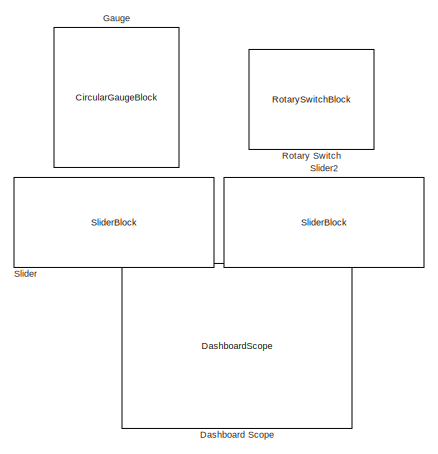
[diagram: root canvas - part 1/2, top center region]
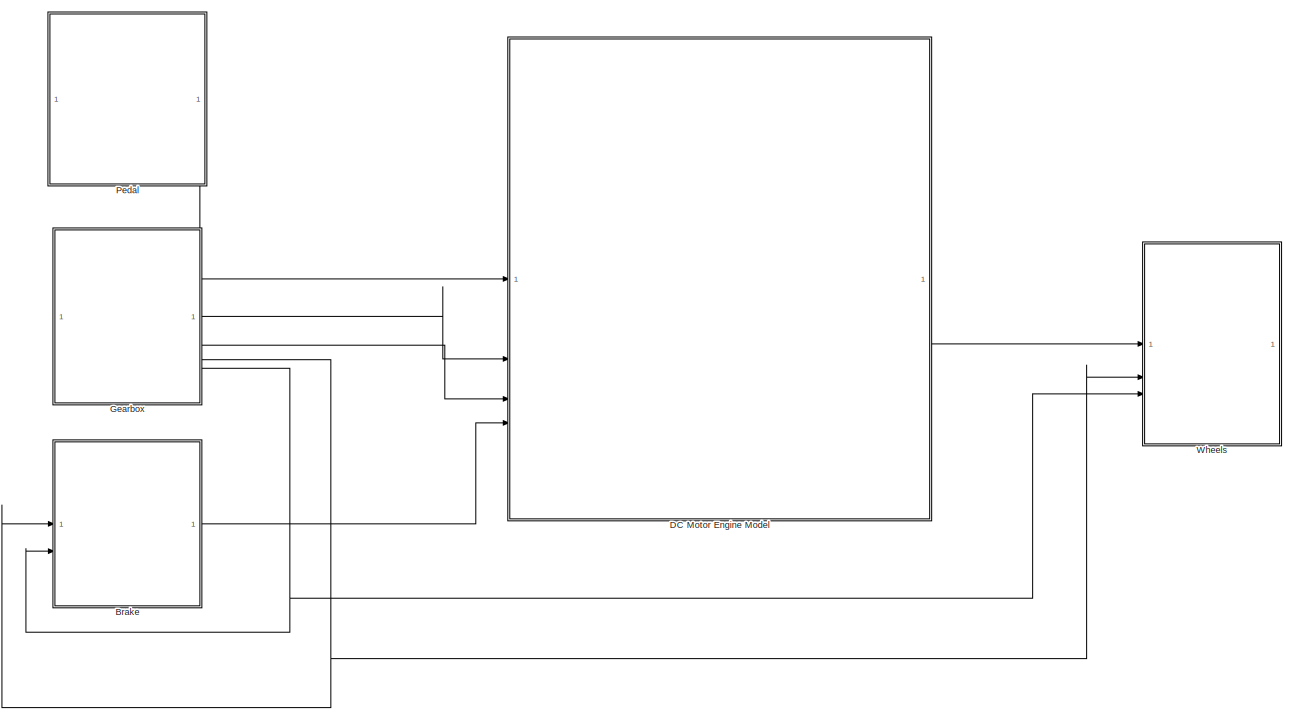
[diagram: root canvas - part 2/2, full width, bottom band]
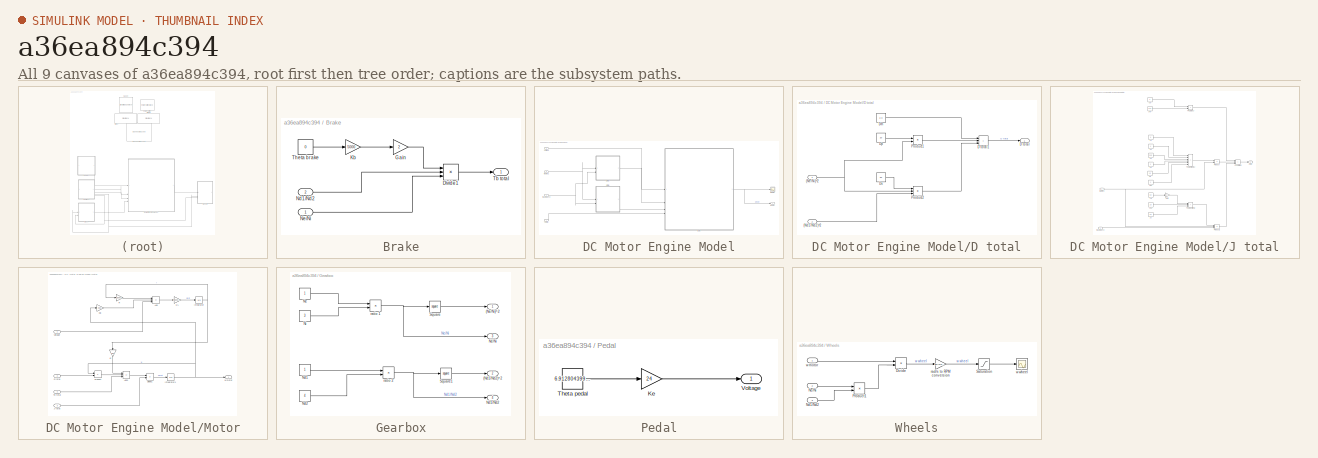
[diagram: thumbnail index - all 9 canvases of the model, root first then tree order]
MODEL slx_a36ea894c394
KIND model
CONFIG AbsTol = auto
CONFIG EnableMultiTasking = off
CONFIG FixedStep = auto
CONFIG MaxStep = auto
CONFIG MinStep = auto
CONFIG RelTol = 1e-3
CONFIG SampleTimeConstraint = Unconstrained
CONFIG SolverName = VariableStepAuto
CONFIG StartTime = 0.0
CONFIG StopTime = 100.0
BLOCK [SubSystem] Brake
BLOCK [Product] Brake/Divide1
  Inputs = ***
BLOCK [Gain] Brake/Gain
  Gain = 2
BLOCK [Gain] Brake/Kb
  Gain = 5000
BLOCK [Inport] Brake/Nd1//Nd2
  NameLocation = top
  Port = 2
BLOCK [Inport] Brake/Ne//Ni
BLOCK [Outport] Brake/Tb total
BLOCK [Constant] Brake/Theta brake
  Value = 0
BLOCK [SubSystem] DC Motor Engine Model
BLOCK [Inport] DC Motor Engine Model/(Nd1//Nd2)^2
  Port = 3
BLOCK [Inport] DC Motor Engine Model/(Ne//Ni)^2
  Port = 2
BLOCK [SubSystem] DC Motor Engine Model/D total
BLOCK [Inport] DC Motor Engine Model/D total/(Nd1//Nd2)^2
  Port = 2
BLOCK [Inport] DC Motor Engine Model/D total/(Ne//Ni)^2
BLOCK [Outport] DC Motor Engine Model/D total/D total
BLOCK [Sum] DC Motor Engine Model/D total/D total1
  IconShape = rectangular
  Inputs = +++
BLOCK [Constant] DC Motor Engine Model/D total/Dm
  Value = 2.3
BLOCK [Constant] DC Motor Engine Model/D total/Dp
  Value = 10
BLOCK [Constant] DC Motor Engine Model/D total/Ds
  Value = 20
BLOCK [Product] DC Motor Engine Model/D total/Product1
BLOCK [Product] DC Motor Engine Model/D total/Product2
  Inputs = 3
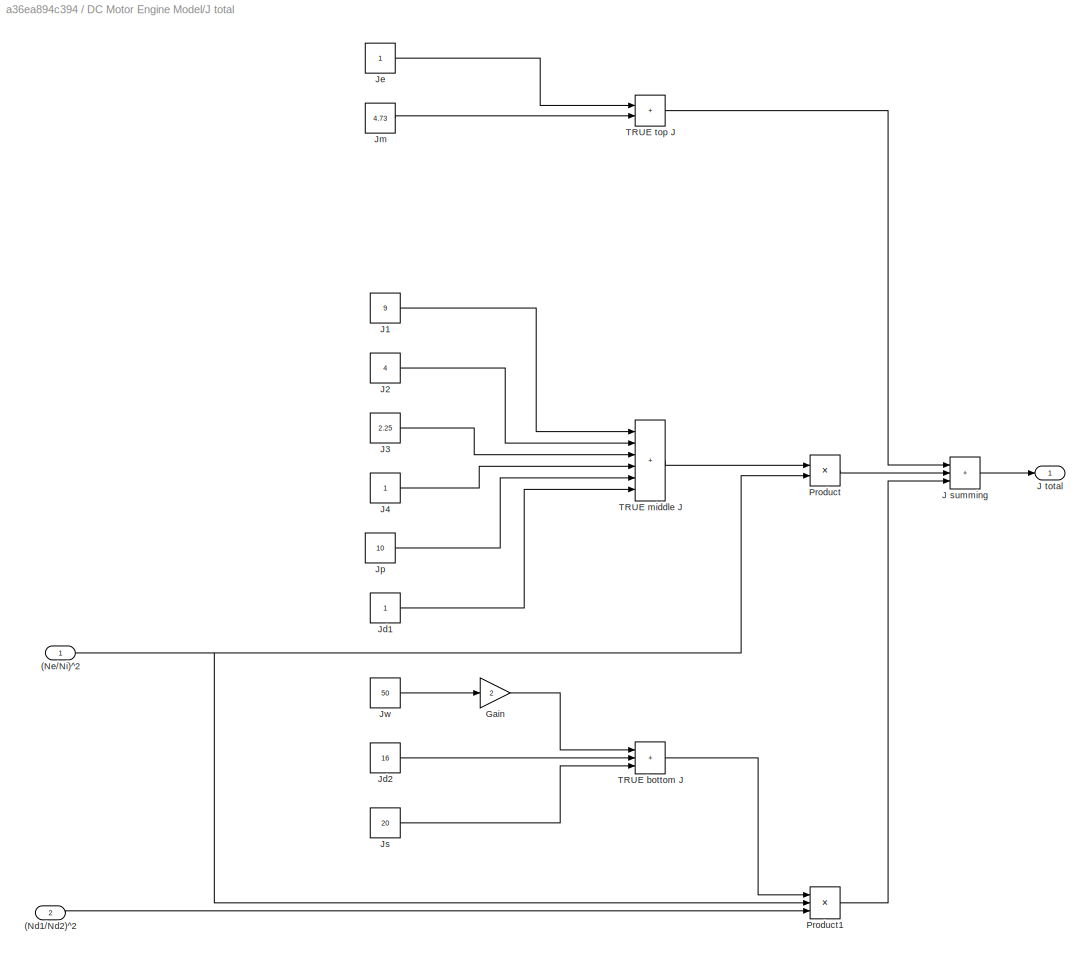
BLOCK [SubSystem] DC Motor Engine Model/J total
BLOCK [Inport] DC Motor Engine Model/J total/(Nd1//Nd2)^2
  Port = 2
BLOCK [Inport] DC Motor Engine Model/J total/(Ne//Ni)^2
BLOCK [Gain] DC Motor Engine Model/J total/Gain
  Gain = 2
BLOCK [Sum] DC Motor Engine Model/J total/J summing
  IconShape = rectangular
  Inputs = +++
BLOCK [Outport] DC Motor Engine Model/J total/J total
BLOCK [Constant] DC Motor Engine Model/J total/J1
  Value = 9
BLOCK [Constant] DC Motor Engine Model/J total/J2
  Value = 4
BLOCK [Constant] DC Motor Engine Model/J total/J3
  Value = 2.25
BLOCK [Constant] DC Motor Engine Model/J total/J4
BLOCK [Constant] DC Motor Engine Model/J total/Jd1
BLOCK [Constant] DC Motor Engine Model/J total/Jd2
  Value = 16
BLOCK [Constant] DC Motor Engine Model/J total/Je
BLOCK [Constant] DC Motor Engine Model/J total/Jm
  Value = 4.73
BLOCK [Constant] DC Motor Engine Model/J total/Jp
  Value = 10
BLOCK [Constant] DC Motor Engine Model/J total/Js
  Value = 20
BLOCK [Constant] DC Motor Engine Model/J total/Jw
  Value = 50
BLOCK [Product] DC Motor Engine Model/J total/Product
BLOCK [Product] DC Motor Engine Model/J total/Product1
  Inputs = 3
BLOCK [Sum] DC Motor Engine Model/J total/TRUE bottom J
  IconShape = rectangular
  Inputs = +++
BLOCK [Sum] DC Motor Engine Model/J total/TRUE middle J
  IconShape = rectangular
  Inputs = ++++++
BLOCK [Sum] DC Motor Engine Model/J total/TRUE top J
  IconShape = rectangular
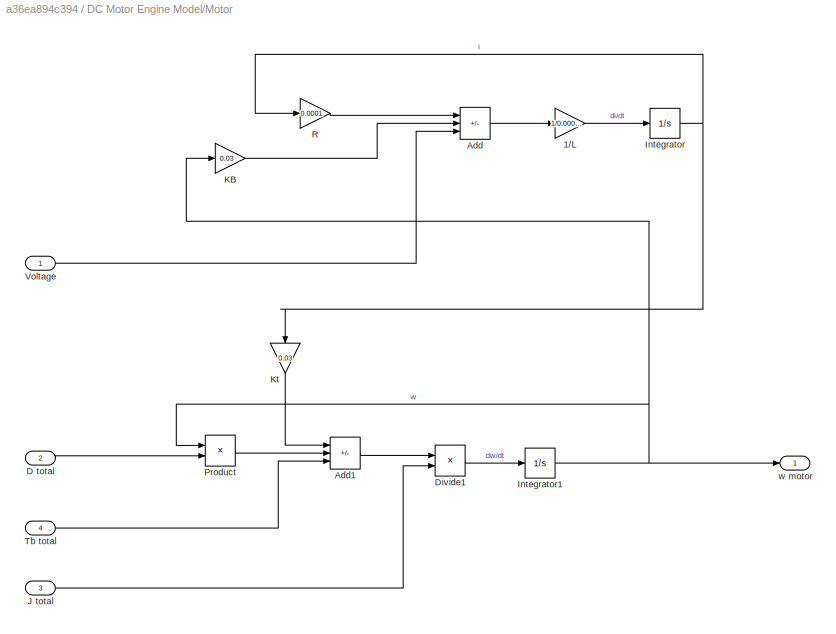
BLOCK [SubSystem] DC Motor Engine Model/Motor
BLOCK [Gain] DC Motor Engine Model/Motor/1//L
  Gain = 1/0.000001
BLOCK [Sum] DC Motor Engine Model/Motor/Add
  IconShape = rectangular
  Inputs = --+
BLOCK [Sum] DC Motor Engine Model/Motor/Add1
  IconShape = rectangular
  Inputs = +--
BLOCK [Inport] DC Motor Engine Model/Motor/D total
  Port = 2
BLOCK [Product] DC Motor Engine Model/Motor/Divide1
  Inputs = */
BLOCK [Integrator] DC Motor Engine Model/Motor/Integrator
BLOCK [Integrator] DC Motor Engine Model/Motor/Integrator1
BLOCK [Inport] DC Motor Engine Model/Motor/J total
  Port = 3
BLOCK [Gain] DC Motor Engine Model/Motor/KB
  Gain = 0.03
BLOCK [Gain] DC Motor Engine Model/Motor/Kt
  Gain = 0.03
  NameLocation = left
BLOCK [Product] DC Motor Engine Model/Motor/Product
BLOCK [Gain] DC Motor Engine Model/Motor/R
  Gain = 0.0001
BLOCK [Inport] DC Motor Engine Model/Motor/Tb total
  Port = 4
BLOCK [Inport] DC Motor Engine Model/Motor/Voltage
BLOCK [Outport] DC Motor Engine Model/Motor/w motor
BLOCK [Inport] DC Motor Engine Model/Tb total
  Port = 4
BLOCK [Inport] DC Motor Engine Model/Voltage
BLOCK [Scope] DC Motor Engine Model/w motor
  Floating = off
  NumInputPorts = 1
  ScopeSpecificationString = Simulink.scopes.TimeScopeBlockCfg('CurrentConfiguration', extmgr.ConfigurationSet(extmgr.Configuration('Core','General UI',true),extmgr.Configuration('Core','Source UI',true),extmgr.Configuration('Sources','WiredSimulink',true),extmgr.Configuration('Visuals','Time Domain',true,'SerializedDisplays',{struct('MinYLimReal','-522.90682','MaxYLimReal','164.97061','YLabelReal','','MinYLimMag',' 0.00000',...<+1419ch>
BLOCK [Outport] DC Motor Engine Model/w motor 
BLOCK [DashboardScope] Dashboard Scope
  Ymax = 10000
  Ymin = 0
BLOCK [CircularGaugeBlock] Gauge
  ScaleMax = 5000
BLOCK [SubSystem] Gearbox
BLOCK [Outport] Gearbox/(Nd1//Nd2)^2
  Port = 2
BLOCK [Outport] Gearbox/(Ne//Ni)^2
BLOCK [Constant] Gearbox/Nd1
BLOCK [Outport] Gearbox/Nd1//Nd2
  Port = 4
BLOCK [Constant] Gearbox/Nd2
  Value = 4
BLOCK [Constant] Gearbox/Ne
BLOCK [Outport] Gearbox/Ne//Ni
  Port = 3
BLOCK [Constant] Gearbox/Ni
  Value = 3
BLOCK [Math] Gearbox/Square
  Operator = square
BLOCK [Math] Gearbox/Square1
  Operator = square
BLOCK [Product] Gearbox/ratio 1
  Inputs = */
BLOCK [Product] Gearbox/ratio 2
  Inputs = */
BLOCK [SubSystem] Pedal
BLOCK [Gain] Pedal/Ke
  Gain = 24
BLOCK [Constant] Pedal/Theta pedal
  Value = 6.912804399057344
BLOCK [Outport] Pedal/Voltage
BLOCK [RotarySwitchBlock] Rotary Switch
BLOCK [SliderBlock] Slider
BLOCK [SliderBlock] Slider2
BLOCK [SubSystem] Wheels
BLOCK [Product] Wheels/Divide
  Inputs = **
BLOCK [Inport] Wheels/Nd1//Nd2
  Port = 3
BLOCK [Inport] Wheels/Ne//Ni
  Port = 2
BLOCK [Product] Wheels/Product1
BLOCK [Saturate] Wheels/Saturation
  LowerLimit = 0
  UpperLimit = inf
BLOCK [Gain] Wheels/rad//s to RPM conversion
  Gain = 60/(2*pi())
BLOCK [Inport] Wheels/w motor
BLOCK [Scope] Wheels/w wheel
  Floating = off
  NumInputPorts = 1
  ScopeSpecificationString = Simulink.scopes.TimeScopeBlockCfg('CurrentConfiguration', extmgr.ConfigurationSet(extmgr.Configuration('Core','General UI',true),extmgr.Configuration('Core','Source UI',true),extmgr.Configuration('Sources','WiredSimulink',true,'DataLoggingVariableName','ScopeData1'),extmgr.Configuration('Visuals','Time Domain',true,'SerializedDisplays',{struct('MinYLimReal','-912.45626','MaxYLimReal','8212.1063','...<+1448ch>
LINE Brake/Divide1:1 -> Brake/Tb total:1
LINE Brake/Gain:1 -> Brake/Divide1:1
LINE Brake/Kb:1 -> Brake/Gain:1
LINE Brake/Nd1//Nd2:1 -> Brake/Divide1:2
LINE Brake/Ne//Ni:1 -> Brake/Divide1:3
LINE Brake/Theta brake:1 -> Brake/Kb:1
LINE Brake:1 -> DC Motor Engine Model:4
NET DC Motor Engine Model/(Nd1//Nd2)^2:1 -> DC Motor Engine Model/D total:2, DC Motor Engine Model/J total:2
NET DC Motor Engine Model/(Ne//Ni)^2:1 -> DC Motor Engine Model/D total:1, DC Motor Engine Model/J total:1
LINE DC Motor Engine Model/D total/(Nd1//Nd2)^2:1 -> DC Motor Engine Model/D total/Product2:3
NET DC Motor Engine Model/D total/(Ne//Ni)^2:1 -> DC Motor Engine Model/D total/Product1:2, DC Motor Engine Model/D total/Product2:2
LINE DC Motor Engine Model/D total/D total1:1 -> DC Motor Engine Model/D total/D total:1
LINE DC Motor Engine Model/D total/Dm:1 -> DC Motor Engine Model/D total/D total1:1
LINE DC Motor Engine Model/D total/Dp:1 -> DC Motor Engine Model/D total/Product1:1
LINE DC Motor Engine Model/D total/Ds:1 -> DC Motor Engine Model/D total/Product2:1
LINE DC Motor Engine Model/D total/Product1:1 -> DC Motor Engine Model/D total/D total1:2
LINE DC Motor Engine Model/D total/Product2:1 -> DC Motor Engine Model/D total/D total1:3
LINE DC Motor Engine Model/D total:1 -> DC Motor Engine Model/Motor:2
LINE DC Motor Engine Model/J total/(Nd1//Nd2)^2:1 -> DC Motor Engine Model/J total/Product1:3
NET DC Motor Engine Model/J total/(Ne//Ni)^2:1 -> DC Motor Engine Model/J total/Product1:2, DC Motor Engine Model/J total/Product:2
LINE DC Motor Engine Model/J total/Gain:1 -> DC Motor Engine Model/J total/TRUE bottom J:1
LINE DC Motor Engine Model/J total/J summing:1 -> DC Motor Engine Model/J total/J total:1
LINE DC Motor Engine Model/J total/J1:1 -> DC Motor Engine Model/J total/TRUE middle J:1
LINE DC Motor Engine Model/J total/J2:1 -> DC Motor Engine Model/J total/TRUE middle J:2
LINE DC Motor Engine Model/J total/J3:1 -> DC Motor Engine Model/J total/TRUE middle J:3
LINE DC Motor Engine Model/J total/J4:1 -> DC Motor Engine Model/J total/TRUE middle J:4
LINE DC Motor Engine Model/J total/Jd1:1 -> DC Motor Engine Model/J total/TRUE middle J:6
LINE DC Motor Engine Model/J total/Jd2:1 -> DC Motor Engine Model/J total/TRUE bottom J:2
LINE DC Motor Engine Model/J total/Je:1 -> DC Motor Engine Model/J total/TRUE top J:1
LINE DC Motor Engine Model/J total/Jm:1 -> DC Motor Engine Model/J total/TRUE top J:2
LINE DC Motor Engine Model/J total/Jp:1 -> DC Motor Engine Model/J total/TRUE middle J:5
LINE DC Motor Engine Model/J total/Js:1 -> DC Motor Engine Model/J total/TRUE bottom J:3
LINE DC Motor Engine Model/J total/Jw:1 -> DC Motor Engine Model/J total/Gain:1
LINE DC Motor Engine Model/J total/Product1:1 -> DC Motor Engine Model/J total/J summing:3
LINE DC Motor Engine Model/J total/Product:1 -> DC Motor Engine Model/J total/J summing:2
LINE DC Motor Engine Model/J total/TRUE bottom J:1 -> DC Motor Engine Model/J total/Product1:1
LINE DC Motor Engine Model/J total/TRUE middle J:1 -> DC Motor Engine Model/J total/Product:1
LINE DC Motor Engine Model/J total/TRUE top J:1 -> DC Motor Engine Model/J total/J summing:1
LINE DC Motor Engine Model/J total:1 -> DC Motor Engine Model/Motor:3
LINE DC Motor Engine Model/Motor/1//L:1 -> DC Motor Engine Model/Motor/Integrator:1
LINE DC Motor Engine Model/Motor/Add1:1 -> DC Motor Engine Model/Motor/Divide1:1
LINE DC Motor Engine Model/Motor/Add:1 -> DC Motor Engine Model/Motor/1//L:1
LINE DC Motor Engine Model/Motor/D total:1 -> DC Motor Engine Model/Motor/Product:2
LINE DC Motor Engine Model/Motor/Divide1:1 -> DC Motor Engine Model/Motor/Integrator1:1
NET DC Motor Engine Model/Motor/Integrator1:1 -> DC Motor Engine Model/Motor/KB:1, DC Motor Engine Model/Motor/Product:1, DC Motor Engine Model/Motor/w motor:1
NET DC Motor Engine Model/Motor/Integrator:1 -> DC Motor Engine Model/Motor/Kt:1, DC Motor Engine Model/Motor/R:1
LINE DC Motor Engine Model/Motor/J total:1 -> DC Motor Engine Model/Motor/Divide1:2
LINE DC Motor Engine Model/Motor/KB:1 -> DC Motor Engine Model/Motor/Add:2
LINE DC Motor Engine Model/Motor/Kt:1 -> DC Motor Engine Model/Motor/Add1:1
LINE DC Motor Engine Model/Motor/Product:1 -> DC Motor Engine Model/Motor/Add1:2
LINE DC Motor Engine Model/Motor/R:1 -> DC Motor Engine Model/Motor/Add:1
LINE DC Motor Engine Model/Motor/Tb total:1 -> DC Motor Engine Model/Motor/Add1:3
LINE DC Motor Engine Model/Motor/Voltage:1 -> DC Motor Engine Model/Motor/Add:3
NET DC Motor Engine Model/Motor:1 -> DC Motor Engine Model/w motor :1, DC Motor Engine Model/w motor:1
LINE DC Motor Engine Model/Tb total:1 -> DC Motor Engine Model/Motor:4
LINE DC Motor Engine Model/Voltage:1 -> DC Motor Engine Model/Motor:1
LINE DC Motor Engine Model:1 -> Wheels:1
LINE Gearbox/Nd1:1 -> Gearbox/ratio 2:1
LINE Gearbox/Nd2:1 -> Gearbox/ratio 2:2
LINE Gearbox/Ne:1 -> Gearbox/ratio 1:1
LINE Gearbox/Ni:1 -> Gearbox/ratio 1:2
LINE Gearbox/Square1:1 -> Gearbox/(Nd1//Nd2)^2:1
LINE Gearbox/Square:1 -> Gearbox/(Ne//Ni)^2:1
NET Gearbox/ratio 1:1 -> Gearbox/Ne//Ni:1, Gearbox/Square:1
NET Gearbox/ratio 2:1 -> Gearbox/Nd1//Nd2:1, Gearbox/Square1:1
LINE Gearbox:1 -> DC Motor Engine Model:2
LINE Gearbox:2 -> DC Motor Engine Model:3
NET Gearbox:3 -> Brake:1, Wheels:2
NET Gearbox:4 -> Brake:2, Wheels:3
LINE Pedal/Ke:1 -> Pedal/Voltage:1
LINE Pedal/Theta pedal:1 -> Pedal/Ke:1
LINE Pedal:1 -> DC Motor Engine Model:1
LINE Wheels/Divide:1 -> Wheels/rad//s to RPM conversion:1
LINE Wheels/Nd1//Nd2:1 -> Wheels/Product1:2
LINE Wheels/Ne//Ni:1 -> Wheels/Product1:1
LINE Wheels/Product1:1 -> Wheels/Divide:2
LINE Wheels/Saturation:1 -> Wheels/w wheel:1
LINE Wheels/rad//s to RPM conversion:1 -> Wheels/Saturation:1
LINE Wheels/w motor:1 -> Wheels/Divide:1
note: NET lines group one-source signal fan-out (src -> all destinations, sorted); 1:1 wires keep LINE
